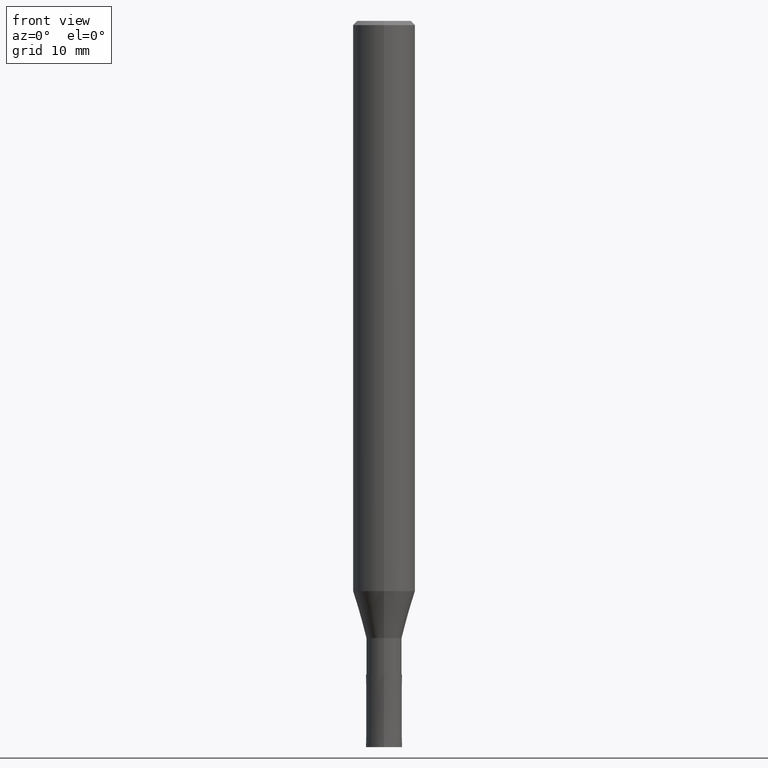
[diagram: clean part render]
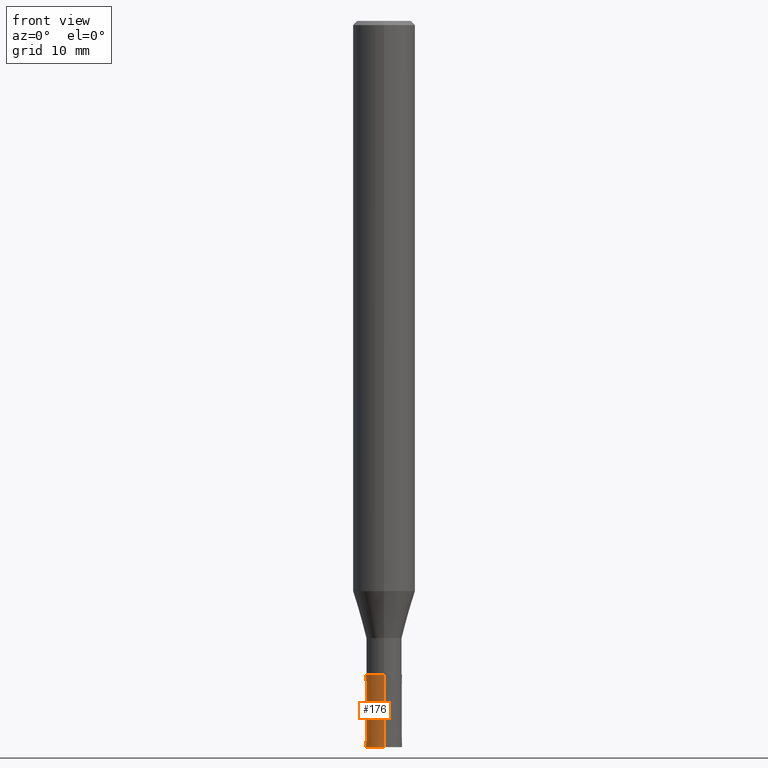
[diagram: same view with one face highlighted and labeled with its STEP entity id]
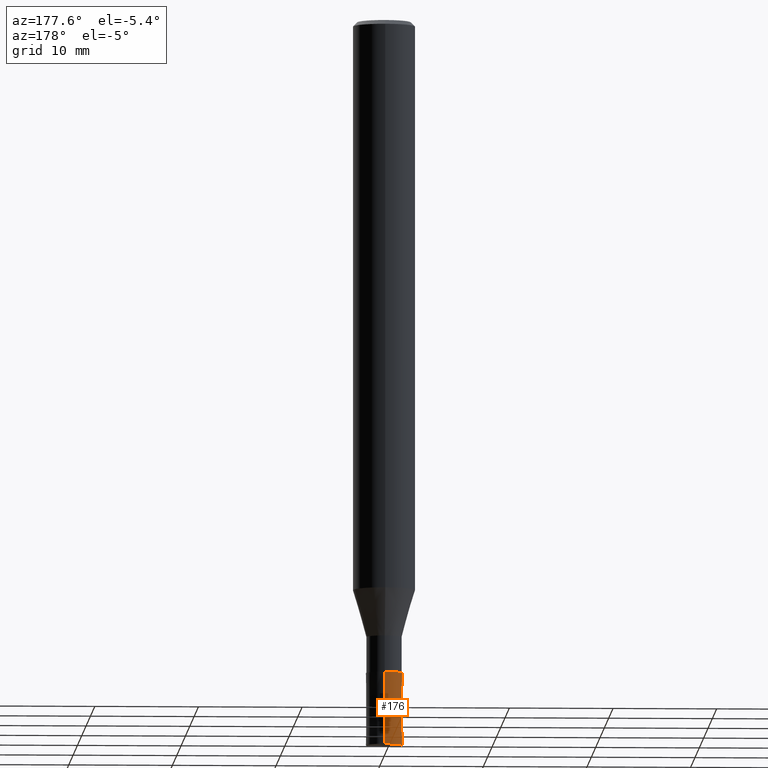
[diagram: same view with one face highlighted and labeled with its STEP entity id]
A machine part, front view. The second image highlights one B-rep face of the part: STEP entity #176.
A second angle (auxiliary view) of the same face is appended — the face is thin or edge-on in the first view.
In plain terms, the highlighted conical surface has half-angle 0.001 deg.
Its self-contained STEP definition (entity closure, byte-faithful):
#98=VERTEX_POINT('',#236);
#104=EDGE_CURVE('',#198,#112,#243,.T.);
#112=VERTEX_POINT('',#252);
#116=EDGE_CURVE('',#158,#198,#256,.T.);
#158=VERTEX_POINT('',#302);
#174=EDGE_CURVE('',#112,#98,#320,.T.);
#176=ADVANCED_FACE('',(#322),#323,.T.);
#196=EDGE_CURVE('',#158,#98,#348,.T.);
#198=VERTEX_POINT('',#350);
#236=CARTESIAN_POINT('',(0.0,1.75,-70.0));
#243=CIRCLE('',#393,1.7499);
#252=CARTESIAN_POINT('',(0.0,1.7499,-63.0));
#256=LINE('',#409,#410);
#302=CARTESIAN_POINT('',(2.14306111918916E-016,-1.75,-70.0));
#320=LINE('',#492,#493);
#322=FACE_OUTER_BOUND('',#495,.T.);
#323=CONICAL_SURFACE('',#496,1.74995,1.42857142847409E-005);
#348=CIRCLE('',#525,1.75);
#350=CARTESIAN_POINT('',(2.14293865855378E-016,-1.7499,-63.0));
#393=AXIS2_PLACEMENT_3D('',#563,#564,#565);
#409=CARTESIAN_POINT('',(2.14299988887147E-016,-1.74995,-66.5));
#410=VECTOR('',#578,1.0);
#492=CARTESIAN_POINT('',(-2.14299988887147E-016,1.74995,-66.5));
#493=VECTOR('',#651,1.0);
#495=EDGE_LOOP('',(#653,#654,#655,#656));
#496=AXIS2_PLACEMENT_3D('',#657,#658,#659);
#525=AXIS2_PLACEMENT_3D('',#698,#699,#700);
#563=CARTESIAN_POINT('',(0.0,0.0,-63.0));
#564=DIRECTION('',(0.0,0.0,-1.0));
#565=DIRECTION('',(0.0,1.0,0.0));
#578=DIRECTION('',(-1.74943764813897E-021,1.4285714284255E-005,0.999999999897959));
#651=DIRECTION('',(-1.74943764813898E-021,1.4285714284255E-005,-0.999999999897959));
#653=ORIENTED_EDGE('',*,*,#174,.T.);
#654=ORIENTED_EDGE('',*,*,#196,.F.);
#655=ORIENTED_EDGE('',*,*,#116,.T.);
#656=ORIENTED_EDGE('',*,*,#104,.T.);
#657=CARTESIAN_POINT('',(0.0,0.0,-66.5));
#658=DIRECTION('',(0.0,-0.0,-1.0));
#659=DIRECTION('',(0.0,1.0,0.0));
#698=CARTESIAN_POINT('',(0.0,0.0,-70.0));
#699=DIRECTION('',(0.0,0.0,-1.0));
#700=DIRECTION('',(0.0,1.0,0.0));